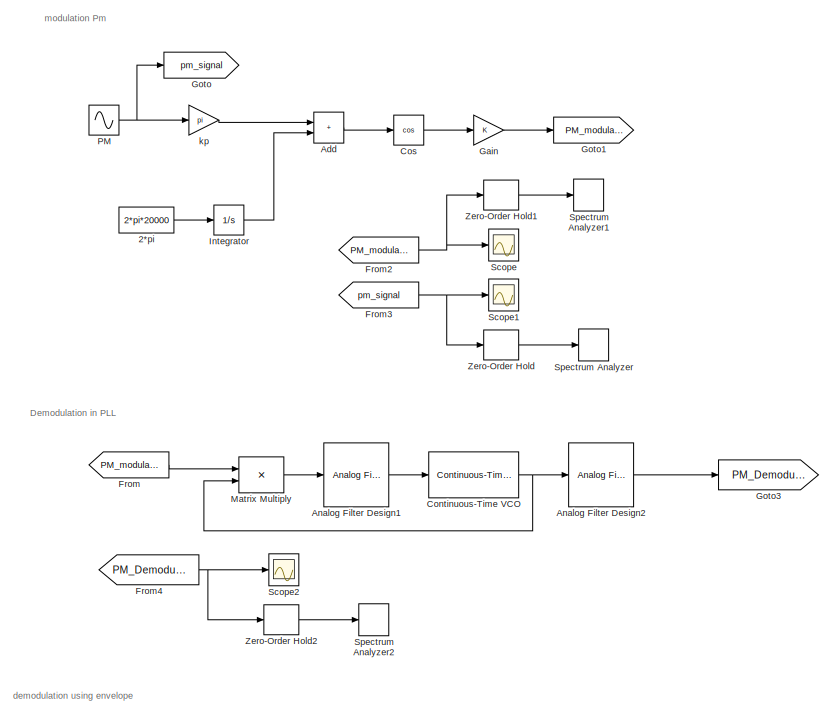
[diagram: root canvas - part 1/2, full width, top band]
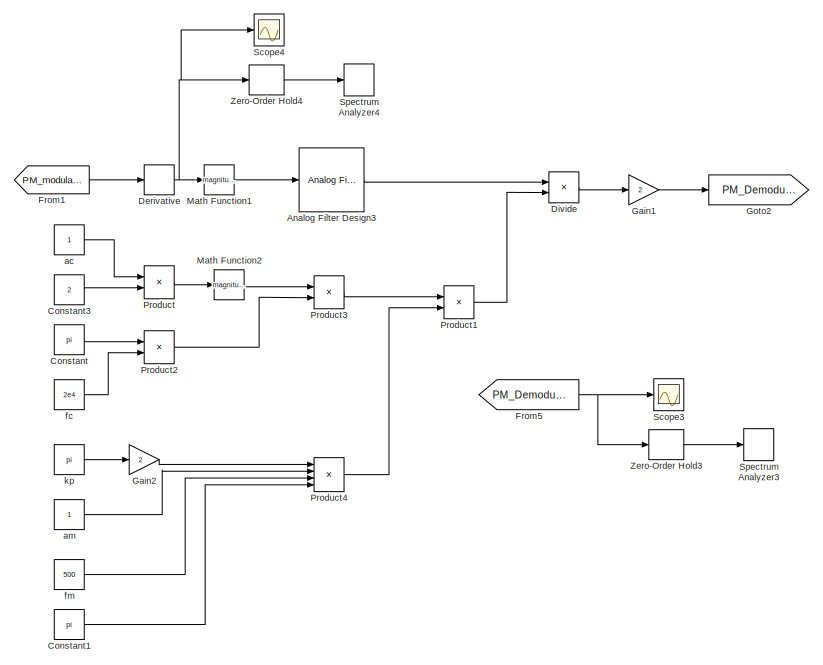
[diagram: root canvas - part 2/2, full width, bottom band]
MODEL slx_ff39d291f421
KIND model
CONFIG AbsTol = auto
CONFIG EnableMultiTasking = off
CONFIG FixedStep = auto
CONFIG MaxStep = auto
CONFIG MinStep = auto
CONFIG RelTol = 1e-3
CONFIG SampleTimeConstraint = Unconstrained
CONFIG SolverName = ode23t
CONFIG StartTime = 0.0
CONFIG StopTime = 2
BLOCK [Constant] 2*pi 
  Value = 2*pi*20000
BLOCK [Sum] Add
  IconShape = rectangular
BLOCK [Reference] Analog Filter Design1  REF=dspfdesign/Analog
Filter Design
  SourceBlock = dspfdesign/Analog\nFilter Design
  SourceType = Analog Filter Design
BLOCK [Reference] Analog Filter Design2  REF=dspfdesign/Analog
Filter Design
  SourceBlock = dspfdesign/Analog\nFilter Design
  SourceType = Analog Filter Design
BLOCK [Reference] Analog Filter Design3  REF=dspfdesign/Analog
Filter Design
  SourceBlock = dspfdesign/Analog\nFilter Design
  SourceType = Analog Filter Design
BLOCK [Constant] Constant
  Value = pi
BLOCK [Constant] Constant1
  Value = pi
BLOCK [Constant] Constant3
  Value = 2
BLOCK [Reference] Continuous-Time VCO  REF=commsynccomp2/Continuous-Time
VCO
  SourceBlock = commsynccomp2/Continuous-Time\nVCO
  SourceType = Continuous-Time VCO
BLOCK [Trigonometry] Cos
  Operator = cos
BLOCK [Derivative] Derivative
BLOCK [Product] Divide
  Inputs = */
BLOCK [From] From
  GotoTag = PM_modulated
BLOCK [From] From1
  GotoTag = PM_modulated
BLOCK [From] From2
  GotoTag = PM_modulated
BLOCK [From] From3
  GotoTag = pm_signal
BLOCK [From] From4
  GotoTag = PM_Demodulated
BLOCK [From] From5
  GotoTag = PM_Demodulated2
BLOCK [Gain] Gain
BLOCK [Gain] Gain1
  Gain = 2
BLOCK [Gain] Gain2
  Gain = 2
BLOCK [Goto] Goto
  GotoTag = pm_signal
BLOCK [Goto] Goto1
  GotoTag = PM_modulated
  IconDisplay = Tag and signal name
BLOCK [Goto] Goto2
  GotoTag = PM_Demodulated2
BLOCK [Goto] Goto3
  GotoTag = PM_Demodulated
BLOCK [Integrator] Integrator
BLOCK [Math] Math Function1
  Operator = magnitude^2
  SignedPower = on
BLOCK [Math] Math Function2
  Operator = magnitude^2
  SignedPower = on
BLOCK [Product] Matrix Multiply
  Multiplication = Matrix(*)
BLOCK [Sin] PM 
  Frequency = 500*pi*2
  SampleTime = 0
BLOCK [Product] Product
BLOCK [Product] Product1
BLOCK [Product] Product2
BLOCK [Product] Product3
BLOCK [Product] Product4
  Inputs = 4
BLOCK [Scope] Scope
  Floating = off
  NumInputPorts = 1
  ScopeSpecificationString = Simulink.scopes.TimeScopeBlockCfg('CurrentConfiguration', extmgr.ConfigurationSet(extmgr.Configuration('Core','General UI',true),extmgr.Configuration('Core','Source UI',true),extmgr.Configuration('Sources','WiredSimulink',true),extmgr.Configuration('Visuals','Time Domain',true,'SerializedDisplays',{struct('MinYLimReal','-1.25','MaxYLimReal','1.25','YLabelReal','','MinYLimMag','0.00000','MaxYLimMag...<+1596ch>
BLOCK [Scope] Scope1
  Floating = off
  NumInputPorts = 1
  ScopeSpecificationString = Simulink.scopes.TimeScopeBlockCfg('CurrentConfiguration', extmgr.ConfigurationSet(extmgr.Configuration('Core','General UI',true),extmgr.Configuration('Core','Source UI',true),extmgr.Configuration('Sources','WiredSimulink',true,'DataLoggingVariableName','ScopeData1'),extmgr.Configuration('Visuals','Time Domain',true,'SerializedDisplays',{struct('MinYLimReal','-1.25','MaxYLimReal','1.25','YLabelReal...<+1551ch>
BLOCK [Scope] Scope2
  Floating = off
  NumInputPorts = 1
  ScopeSpecificationString = Simulink.scopes.TimeScopeBlockCfg('CurrentConfiguration', extmgr.ConfigurationSet(extmgr.Configuration('Core','General UI',true),extmgr.Configuration('Core','Source UI',true),extmgr.Configuration('Sources','WiredSimulink',true,'DataLoggingVariableName','ScopeData2'),extmgr.Configuration('Visuals','Time Domain',true,'SerializedDisplays',{struct('MinYLimReal','-1.22806','MaxYLimReal','1.22532','YLab...<+1690ch>
BLOCK [Scope] Scope3
  Floating = off
  NumInputPorts = 1
  ScopeSpecificationString = Simulink.scopes.TimeScopeBlockCfg('CurrentConfiguration', extmgr.ConfigurationSet(extmgr.Configuration('Core','General UI',true),extmgr.Configuration('Core','Source UI',true),extmgr.Configuration('Sources','WiredSimulink',true,'DataLoggingVariableName','ScopeData3'),extmgr.Configuration('Visuals','Time Domain',true,'SerializedDisplays',{struct('MinYLimReal','-1.43585','MaxYLimReal','1.43693','YLab...<+1694ch>
BLOCK [Scope] Scope4
  Floating = off
  NumInputPorts = 1
  ScopeSpecificationString = Simulink.scopes.TimeScopeBlockCfg('CurrentConfiguration', extmgr.ConfigurationSet(extmgr.Configuration('Core','General UI',true),extmgr.Configuration('Core','Source UI',true),extmgr.Configuration('Sources','WiredSimulink',true,'DataLoggingVariableName','ScopeData1'),extmgr.Configuration('Visuals','Time Domain',true,'SerializedDisplays',{struct('MinYLimReal','-169340.62026','MaxYLimReal','169188.86...<+1679ch>
BLOCK [SpectrumAnalyzer] Spectrum Analyzer
  AllowFFTLengthLessThanSamplesPerUpdate = on
  AveragingMethod = Running
  DefaultConfigurationName = spbscopes.SpectrumAnalyzerBlockCfg
  FrequencyInputRBWFromPort = 0
  FrequencyInputRBWPort = 0
  FrequencyVectorFromPort = 0
  FrequencyVectorPort = 0
  GraphicalSettings = {"GraphicalSettings":{"SpectralMask":{"CustomReferenceLevel":"0","EnabledMasks":"None","LowerMask":"-Inf","MaskFrequencyOffset":"0","ReferenceLevel":"Custom","SelectedChannel":"1","UpperMask":"Inf"},"Style":{"AxesColor":"[0 0 0]","DisplayName":"","LabelsColor":"[0.686274509803922 0.686274509803922 0.686274509803922]","LineStyle":"-","LineWidth":"1","Marker":"none","MarkerEdgeColor":"auto","MarkerF...<+145ch>  <repeated x3 — deduplicated; at blocks: Spectrum Analyzer, Spectrum Analyzer1, Spectrum Analyzer4>
  IsFrequencyInputMode = 0
  Method = Welch
  OpenAtSimulationStart = off
  SampleRate = 5000
  ScopeFrameLocation = window
  ScopeSpecificationString = spbscopes.SpectrumAnalyzerBlockCfg('CurrentConfiguration', extmgr.ConfigurationSet(extmgr.Configuration('Core','General UI',true),extmgr.Configuration('Core','Source UI',true),extmgr.Configuration('Sources','WiredSimulink',true),extmgr.Configuration('Visuals','Spectrum',true,'AxesProperties',struct('Color',{[0 0 0],[0 0 0]},'XColor',{[0.686274509803922 0.686274509803922 0.686274509803922],[0.68627...<+3494ch>
  Span = 5000
  SpectrumType = RMS
  SpectrumUnits = Vrms
  StartFrequency = -2500
  StopFrequency = 2500
  Title = PM message signal
  WasSavedAsWebScope = on
  WindowPosition = [-128.000000,-14.000000,1282.000000,700.000000,]
  YLimits = [-0.0625,0.5625000000000009992]
BLOCK [SpectrumAnalyzer] Spectrum Analyzer1
  AllowFFTLengthLessThanSamplesPerUpdate = on
  AveragingMethod = Running
  DefaultConfigurationName = spbscopes.SpectrumAnalyzerBlockCfg
  FrequencyInputRBWFromPort = 0
  FrequencyInputRBWPort = 0
  FrequencyVectorFromPort = 0
  FrequencyVectorPort = 0
  IsFrequencyInputMode = 0
  Method = Welch
  OpenAtSimulationStart = off
  SampleRate = 5000
  ScopeFrameLocation = window
  ScopeSpecificationString = spbscopes.SpectrumAnalyzerBlockCfg('CurrentConfiguration', extmgr.ConfigurationSet(extmgr.Configuration('Core','General UI',true),extmgr.Configuration('Core','Source UI',true),extmgr.Configuration('Sources','WiredSimulink',true),extmgr.Configuration('Visuals','Spectrum',true,'AxesProperties',struct('Color',{[0 0 0],[0 0 0]},'XColor',{[0.686274509803922 0.686274509803922 0.686274509803922],[0.68627...<+3518ch>
  Span = 5000
  SpectrumType = RMS
  SpectrumUnits = Vrms
  StartFrequency = -2500
  StopFrequency = 2500
  Title = Modulated PM signal
  WasSavedAsWebScope = on
  WindowPosition = [-128.000000,-14.000000,1282.000000,700.000000,]
  YLimits = [-0.050210391821687246072,0.45189352639531149558]
BLOCK [SpectrumAnalyzer] Spectrum Analyzer2
  AllowFFTLengthLessThanSamplesPerUpdate = on
  AveragingMethod = Running
  AxesScaling = Manual
  ChannelNames = ["PM demodulated by PLL"]
  DefaultConfigurationName = spbscopes.SpectrumAnalyzerBlockCfg
  FrequencyInputRBWFromPort = 0
  FrequencyInputRBWPort = 0
  FrequencyVectorFromPort = 0
  FrequencyVectorPort = 0
  GraphicalSettings = {"GraphicalSettings":{"SpectralMask":{"CustomReferenceLevel":"0","EnabledMasks":"None","LowerMask":"-Inf","MaskFrequencyOffset":"0","ReferenceLevel":"Custom","SelectedChannel":"1","UpperMask":"Inf"},"Style":{"AxesColor":"[0 0 0]","DisplayName":"PM demodulated by PLL","LabelsColor":"[0.686274509803922 0.686274509803922 0.686274509803922]","LineStyle":"-","LineWidth":"1","Marker":"none","MarkerEdgeC...<+214ch>
  IsFrequencyInputMode = 0
  Method = Welch
  OpenAtSimulationStart = off
  SampleRate = 5000
  ScopeFrameLocation = window
  ScopeSpecificationString = spbscopes.SpectrumAnalyzerBlockCfg('CurrentConfiguration', extmgr.ConfigurationSet(extmgr.Configuration('Core','General UI',true),extmgr.Configuration('Core','Source UI',true),extmgr.Configuration('Sources','WiredSimulink',true),extmgr.Configuration('Visuals','Spectrum',true,'AxesProperties',struct('Color',{[0 0 0],[0 0 0]},'XColor',{[0.686274509803922 0.686274509803922 0.686274509803922],[0.68627...<+2186ch>
  ShowLegend = on
  Span = 5000
  SpectrumType = RMS
  SpectrumUnits = Vrms
  StartFrequency = -2500
  StopFrequency = 2500
  WasSavedAsWebScope = on
  WindowPosition = [-128.000000,-14.000000,1282.000000,700.000000,]
  YLimits = [-0.060875356186415423287,0.54787821355457577699]
BLOCK [SpectrumAnalyzer] Spectrum Analyzer3
  AllowFFTLengthLessThanSamplesPerUpdate = on
  AveragingMethod = Running
  ChannelNames = ["PM modulated with envelope"]
  DefaultConfigurationName = spbscopes.SpectrumAnalyzerBlockCfg
  FrequencyInputRBWFromPort = 0
  FrequencyInputRBWPort = 0
  FrequencyVectorFromPort = 0
  FrequencyVectorPort = 0
  GraphicalSettings = {"GraphicalSettings":{"SpectralMask":{"CustomReferenceLevel":"0","EnabledMasks":"None","LowerMask":"-Inf","MaskFrequencyOffset":"0","ReferenceLevel":"Custom","SelectedChannel":"1","UpperMask":"Inf"},"Style":{"AxesColor":"[0 0 0]","DisplayName":"PM modulated with envelope","LabelsColor":"[0.686274509803922 0.686274509803922 0.686274509803922]","LineStyle":"-","LineWidth":"1","Marker":"none","Marker...<+171ch>
  IsFrequencyInputMode = 0
  Method = Welch
  OpenAtSimulationStart = off
  SampleRate = 5000
  ScopeFrameLocation = window
  ScopeSpecificationString = spbscopes.SpectrumAnalyzerBlockCfg('CurrentConfiguration', extmgr.ConfigurationSet(extmgr.Configuration('Core','General UI',true),extmgr.Configuration('Core','Source UI',true),extmgr.Configuration('Sources','WiredSimulink',true),extmgr.Configuration('Visuals','Spectrum',true,'AxesProperties',struct('Color',{[0 0 0],[0 0 0]},'XColor',{[0.686274509803922 0.686274509803922 0.686274509803922],[0.68627...<+2125ch>
  ShowLegend = on
  Span = 5000
  SpectrumType = RMS
  SpectrumUnits = Vrms
  StartFrequency = -2500
  StopFrequency = 2500
  WasSavedAsWebScope = on
  WindowPosition = [-128.000000,-14.000000,1282.000000,700.000000,]
  YLimits = [-0.056154252231000477413,0.50538827095485150398]
BLOCK [SpectrumAnalyzer] Spectrum Analyzer4
  AllowFFTLengthLessThanSamplesPerUpdate = on
  AveragingMethod = Running
  DefaultConfigurationName = spbscopes.SpectrumAnalyzerBlockCfg
  FrequencyInputRBWFromPort = 0
  FrequencyInputRBWPort = 0
  FrequencyVectorFromPort = 0
  FrequencyVectorPort = 0
  IsFrequencyInputMode = 0
  Method = Welch
  OpenAtSimulationStart = off
  SampleRate = 5000
  ScopeFrameLocation = window
  ScopeSpecificationString = spbscopes.SpectrumAnalyzerBlockCfg('CurrentConfiguration', extmgr.ConfigurationSet(extmgr.Configuration('Core','General UI',true),extmgr.Configuration('Core','Source UI',true),extmgr.Configuration('Sources','WiredSimulink',true),extmgr.Configuration('Visuals','Spectrum',true,'AxesProperties',struct('Color',{[0 0 0],[0 0 0]},'XColor',{[0.686274509803922 0.686274509803922 0.686274509803922],[0.68627...<+2025ch>
  Span = 5000
  SpectrumType = RMS
  SpectrumUnits = Vrms
  StartFrequency = -2500
  StopFrequency = 2500
  WasSavedAsWebScope = on
  WindowPosition = [1.000000,1.000000,1280.000000,697.000000,]
  YLimits = [-5004.4245299882031759,45064.563855548163701]
BLOCK [ZeroOrderHold] Zero-Order Hold
  SampleTime = -1
BLOCK [ZeroOrderHold] Zero-Order Hold1
  SampleTime = -1
BLOCK [ZeroOrderHold] Zero-Order Hold2
  SampleTime = 1/(10*5e2)
BLOCK [ZeroOrderHold] Zero-Order Hold3
  SampleTime = 1/(10*5e2)
BLOCK [ZeroOrderHold] Zero-Order Hold4
  SampleTime = -1
BLOCK [Constant] ac
BLOCK [Constant] am 
BLOCK [Constant] fc
  Value = 2e4
BLOCK [Constant] fm
  Value = 500
BLOCK [Gain] kp
  Gain = pi
BLOCK [Constant] kp 
  Value = pi
ANNOTATION (root): Demodulation in PLL
ANNOTATION (root): demodulation using envelope
ANNOTATION (root): modulation Pm
LINE 2*pi :1 -> Integrator:1
LINE Add:1 -> Cos:1
LINE Analog Filter Design1:1 -> Continuous-Time VCO:1
LINE Analog Filter Design2:1 -> Goto3:1
LINE Analog Filter Design3:1 -> Divide:1
LINE Constant1:1 -> Product4:4
LINE Constant3:1 -> Product:2
LINE Constant:1 -> Product2:1
NET Continuous-Time VCO:1 -> Analog Filter Design2:1, Matrix Multiply:2
LINE Cos:1 -> Gain:1
NET Derivative:1 -> Math Function1:1, Scope4:1, Zero-Order Hold4:1
LINE Divide:1 -> Gain1:1
LINE From1:1 -> Derivative:1
NET From2:1 -> Scope:1, Zero-Order Hold1:1
NET From3:1 -> Scope1:1, Zero-Order Hold:1
NET From4:1 -> Scope2:1, Zero-Order Hold2:1
NET From5:1 -> Scope3:1, Zero-Order Hold3:1
LINE From:1 -> Matrix Multiply:1
LINE Gain1:1 -> Goto2:1
LINE Gain2:1 -> Product4:1
LINE Gain:1 -> Goto1:1
LINE Integrator:1 -> Add:2
LINE Math Function1:1 -> Analog Filter Design3:1
LINE Math Function2:1 -> Product3:1
LINE Matrix Multiply:1 -> Analog Filter Design1:1
NET PM :1 -> Goto:1, kp:1
LINE Product1:1 -> Divide:2
LINE Product2:1 -> Product3:2
LINE Product3:1 -> Product1:1
LINE Product4:1 -> Product1:2
LINE Product:1 -> Math Function2:1
LINE Zero-Order Hold1:1 -> Spectrum Analyzer1:1
LINE Zero-Order Hold2:1 -> Spectrum Analyzer2:1
LINE Zero-Order Hold3:1 -> Spectrum Analyzer3:1
LINE Zero-Order Hold4:1 -> Spectrum Analyzer4:1
LINE Zero-Order Hold:1 -> Spectrum Analyzer:1
LINE ac:1 -> Product:1
LINE am :1 -> Product4:2
LINE fc:1 -> Product2:2
LINE fm:1 -> Product4:3
LINE kp :1 -> Gain2:1
LINE kp:1 -> Add:1
note: NET lines group one-source signal fan-out (src -> all destinations, sorted); 1:1 wires keep LINE
